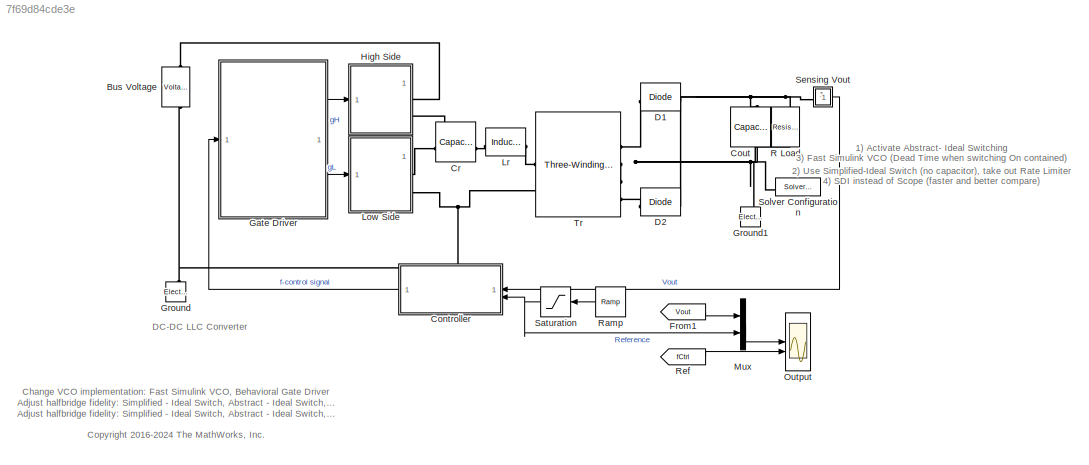
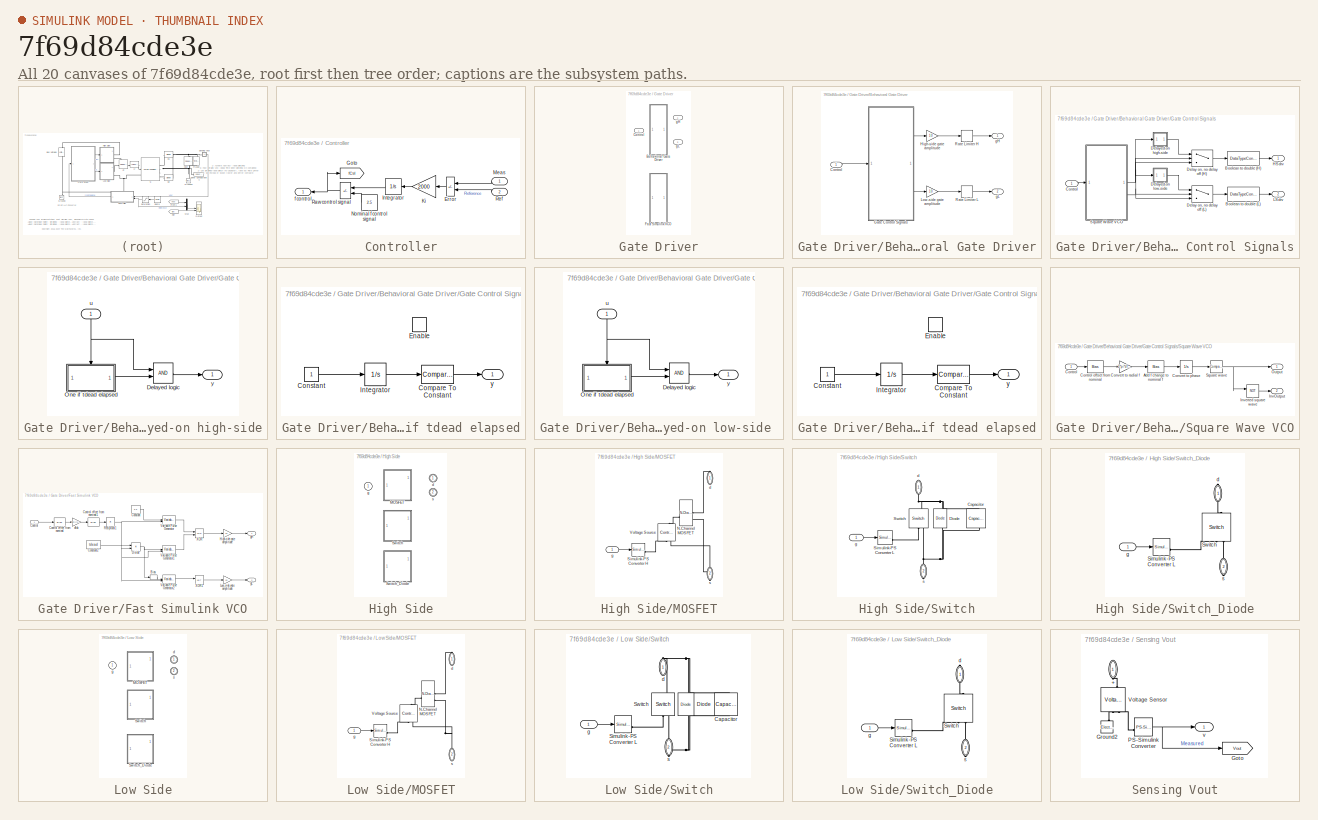
[diagram: thumbnail index - all 20 canvases of the model, root first then tree order]
MODEL slx_7f69d84cde3e
KIND model
CONFIG AbsTol = 1e-3
CONFIG EnableMultiTasking = on
CONFIG FixedStep = auto
CONFIG InitFcn = clear out;
CONFIG MaxStep = auto
CONFIG MinStep = auto
CONFIG PreLoadFcn = Vbus_nominal = 450;\nVbus_ripple = 10;\nbusRippleFrequency = 100;\nVout_nominal = 54;\nPout = 100;\nCr = 1.2089e-8;\nLr = 1.6226e-4;\nLm = 2.3e-3;\nn = 4.3269;\ntransformerCoupling = 0.99;\nCout = 3.0237e-5;\ntdead = 3e-7;\nfswfinal = [67.287 91.52]*1e3;\nVf = 0.6;\n\nswitchType = 1;\nMode = 0;
CONFIG RelTol = 1e-3
CONFIG SampleTimeConstraint = Unconstrained
CONFIG SolverName = daessc
CONFIG StartTime = 0.0
CONFIG StopFcn = %ee_addSimlogTimeStamp(bdroot)\ntry\n    out.SimulationMetadata.TimingInfo\ncatch\nend
CONFIG StopTime = 2e-3
BLOCK [Reference] Bus Voltage  REF=ee_lib/Sources/Voltage Source
  NameLocation = left
  SourceBlock = ee_lib/Sources/Voltage Source
  SourceType = Voltage Source
BLOCK [SubSystem] Controller
BLOCK [Sum] Controller/Error
  IconShape = rectangular
  Inputs = -+
BLOCK [Goto] Controller/Goto
  GotoTag = fCtrl
  TagVisibility = global
BLOCK [Integrator] Controller/Integrator
  LimitOutput = on
  LowerSaturationLimit = -7.5
  UpperSaturationLimit = 2.5
BLOCK [Gain] Controller/Ki
  Gain = 2000
BLOCK [Inport] Controller/Meas
  NameLocation = top
BLOCK [Constant] Controller/Nominal f control signal
  Value = 2.5
BLOCK [Sum] Controller/Raw control signal
  IconShape = rectangular
  Inputs = -+
BLOCK [Inport] Controller/Ref
  Port = 2
BLOCK [Outport] Controller/f control
  NameLocation = top
  VectorParamsAs1DForOutWhenUnconnected = off
BLOCK [Reference] Cout  REF=ee_lib/Passive/Capacitor
  NameLocation = left
  SourceBlock = ee_lib/Passive/Capacitor
  SourceType = Capacitor
BLOCK [Reference] Cr  REF=ee_lib/Passive/Capacitor
  SourceBlock = ee_lib/Passive/Capacitor
  SourceType = Capacitor
BLOCK [Reference] D1  REF=ee_lib/Semiconductors &
Converters/Diode
  SourceBlock = ee_lib/Semiconductors &\nConverters/Diode
  SourceType = Diode
BLOCK [Reference] D2  REF=ee_lib/Semiconductors &
Converters/Diode
  SourceBlock = ee_lib/Semiconductors &\nConverters/Diode
  SourceType = Diode
BLOCK [From] From1
  GotoTag = Vout
  TagVisibility = global
BLOCK [SubSystem] Gate Driver
  Variant = on
  VariantControl = Choice
BLOCK [SubSystem] Gate Driver/Behavioral Gate Driver
  VariantControl = Mode == 0
BLOCK [Inport] Gate Driver/Behavioral Gate Driver/Control
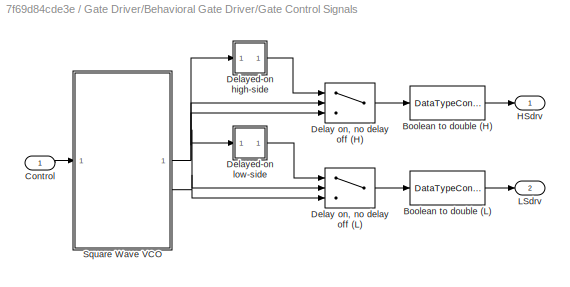
BLOCK [SubSystem] Gate Driver/Behavioral Gate Driver/Gate Control Signals
BLOCK [DataTypeConversion] Gate Driver/Behavioral Gate Driver/Gate Control Signals/Boolean to double (H)
  RndMeth = Floor
  SaturateOnIntegerOverflow = off
BLOCK [DataTypeConversion] Gate Driver/Behavioral Gate Driver/Gate Control Signals/Boolean to double (L)
  RndMeth = Floor
  SaturateOnIntegerOverflow = off
BLOCK [Inport] Gate Driver/Behavioral Gate Driver/Gate Control Signals/Control
BLOCK [Switch] Gate Driver/Behavioral Gate Driver/Gate Control Signals/Delay on, no delay off (H)
  Criteria = u2 > Threshold
  InputSameDT = off
  SaturateOnIntegerOverflow = off
  Threshold = 0.5
BLOCK [Switch] Gate Driver/Behavioral Gate Driver/Gate Control Signals/Delay on, no delay off (L)
  Criteria = u2 > Threshold
  InputSameDT = off
  SaturateOnIntegerOverflow = off
  Threshold = 0.5
BLOCK [SubSystem] Gate Driver/Behavioral Gate Driver/Gate Control Signals/Delayed-on high-side
BLOCK [Logic] Gate Driver/Behavioral Gate Driver/Gate Control Signals/Delayed-on high-side/Delayed logic
  AllPortsSameDT = off
  OutDataTypeStr = boolean
BLOCK [SubSystem] Gate Driver/Behavioral Gate Driver/Gate Control Signals/Delayed-on high-side/One if tdead elapsed
  TreatAsAtomicUnit = on
BLOCK [Reference] Gate Driver/Behavioral Gate Driver/Gate Control Signals/Delayed-on high-side/One if tdead elapsed/Compare To Constant  REF=simulink/Logic and Bit
Operations/Compare
To Constant
  SourceBlock = simulink/Logic and Bit\nOperations/Compare\nTo Constant
  SourceType = Compare To Constant
BLOCK [Constant] Gate Driver/Behavioral Gate Driver/Gate Control Signals/Delayed-on high-side/One if tdead elapsed/Constant
BLOCK [EnablePort] Gate Driver/Behavioral Gate Driver/Gate Control Signals/Delayed-on high-side/One if tdead elapsed/Enable
  StatesWhenEnabling = reset
BLOCK [Integrator] Gate Driver/Behavioral Gate Driver/Gate Control Signals/Delayed-on high-side/One if tdead elapsed/Integrator
BLOCK [Outport] Gate Driver/Behavioral Gate Driver/Gate Control Signals/Delayed-on high-side/One if tdead elapsed/y
  VectorParamsAs1DForOutWhenUnconnected = off
BLOCK [Inport] Gate Driver/Behavioral Gate Driver/Gate Control Signals/Delayed-on high-side/u
  NameLocation = right
BLOCK [Outport] Gate Driver/Behavioral Gate Driver/Gate Control Signals/Delayed-on high-side/y
  VectorParamsAs1DForOutWhenUnconnected = off
BLOCK [SubSystem] Gate Driver/Behavioral Gate Driver/Gate Control Signals/Delayed-on low-side 
BLOCK [Logic] Gate Driver/Behavioral Gate Driver/Gate Control Signals/Delayed-on low-side /Delayed logic
  AllPortsSameDT = off
  OutDataTypeStr = boolean
BLOCK [SubSystem] Gate Driver/Behavioral Gate Driver/Gate Control Signals/Delayed-on low-side /One if tdead elapsed
  TreatAsAtomicUnit = on
BLOCK [Reference] Gate Driver/Behavioral Gate Driver/Gate Control Signals/Delayed-on low-side /One if tdead elapsed/Compare To Constant  REF=simulink/Logic and Bit
Operations/Compare
To Constant
  SourceBlock = simulink/Logic and Bit\nOperations/Compare\nTo Constant
  SourceType = Compare To Constant
BLOCK [Constant] Gate Driver/Behavioral Gate Driver/Gate Control Signals/Delayed-on low-side /One if tdead elapsed/Constant
BLOCK [EnablePort] Gate Driver/Behavioral Gate Driver/Gate Control Signals/Delayed-on low-side /One if tdead elapsed/Enable
  StatesWhenEnabling = reset
BLOCK [Integrator] Gate Driver/Behavioral Gate Driver/Gate Control Signals/Delayed-on low-side /One if tdead elapsed/Integrator
BLOCK [Outport] Gate Driver/Behavioral Gate Driver/Gate Control Signals/Delayed-on low-side /One if tdead elapsed/y
  VectorParamsAs1DForOutWhenUnconnected = off
BLOCK [Inport] Gate Driver/Behavioral Gate Driver/Gate Control Signals/Delayed-on low-side /u
  NameLocation = right
BLOCK [Outport] Gate Driver/Behavioral Gate Driver/Gate Control Signals/Delayed-on low-side /y
  VectorParamsAs1DForOutWhenUnconnected = off
BLOCK [Outport] Gate Driver/Behavioral Gate Driver/Gate Control Signals/HSdrv
  VectorParamsAs1DForOutWhenUnconnected = off
BLOCK [Outport] Gate Driver/Behavioral Gate Driver/Gate Control Signals/LSdrv
  Port = 2
  VectorParamsAs1DForOutWhenUnconnected = off
BLOCK [SubSystem] Gate Driver/Behavioral Gate Driver/Gate Control Signals/Square Wave VCO
BLOCK [Bias] Gate Driver/Behavioral Gate Driver/Gate Control Signals/Square Wave VCO/Add f change to nominal f
  Bias = 2*pi*fnom
  SaturateOnIntegerOverflow = off
BLOCK [Inport] Gate Driver/Behavioral Gate Driver/Gate Control Signals/Square Wave VCO/Control
BLOCK [Bias] Gate Driver/Behavioral Gate Driver/Gate Control Signals/Square Wave VCO/Control offset from nominal
  Bias = -vnom
  SaturateOnIntegerOverflow = off
BLOCK [Integrator] Gate Driver/Behavioral Gate Driver/Gate Control Signals/Square Wave VCO/Convert to phase
  WrapState = on
  WrappedStateLowerValue = 0
  WrappedStateUpperValue = 2*pi
BLOCK [Gain] Gate Driver/Behavioral Gate Driver/Gate Control Signals/Square Wave VCO/Convert to radial f
  Gain = 2*pi*dfdv
BLOCK [Outport] Gate Driver/Behavioral Gate Driver/Gate Control Signals/Square Wave VCO/InvOutput
  Port = 2
  VectorParamsAs1DForOutWhenUnconnected = off
BLOCK [Logic] Gate Driver/Behavioral Gate Driver/Gate Control Signals/Square Wave VCO/Inverted square wave
  AllPortsSameDT = off
  Operator = NOT
  OutDataTypeStr = boolean
BLOCK [Outport] Gate Driver/Behavioral Gate Driver/Gate Control Signals/Square Wave VCO/Output
  VectorParamsAs1DForOutWhenUnconnected = off
BLOCK [Reference] Gate Driver/Behavioral Gate Driver/Gate Control Signals/Square Wave VCO/Square wave  REF=simulink/Logic and Bit
Operations/Compare
To Constant
  SourceBlock = simulink/Logic and Bit\nOperations/Compare\nTo Constant
  SourceType = Compare To Constant
BLOCK [Gain] Gate Driver/Behavioral Gate Driver/High-side gate amplitude
  Gain = 10
BLOCK [Gain] Gate Driver/Behavioral Gate Driver/Low-side gate amplitude
  Gain = 10
BLOCK [RateLimiter] Gate Driver/Behavioral Gate Driver/Rate Limiter H
  FallingSlewLimit = -10*5/tdead
  RisingSlewLimit = 10*5/tdead
BLOCK [RateLimiter] Gate Driver/Behavioral Gate Driver/Rate Limiter L
  FallingSlewLimit = -10*5/tdead
  RisingSlewLimit = 10*5/tdead
BLOCK [Outport] Gate Driver/Behavioral Gate Driver/gH
  VectorParamsAs1DForOutWhenUnconnected = off
BLOCK [Outport] Gate Driver/Behavioral Gate Driver/gL
  Port = 2
  VectorParamsAs1DForOutWhenUnconnected = off
BLOCK [Inport] Gate Driver/Control
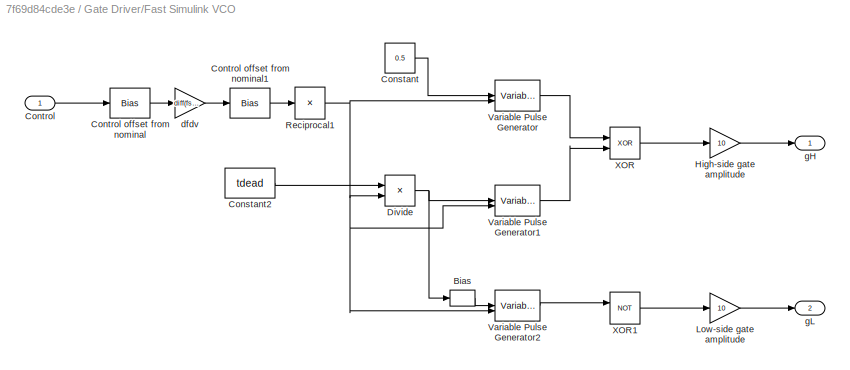
BLOCK [SubSystem] Gate Driver/Fast Simulink VCO
  VariantControl = Mode == 1
BLOCK [Bias] Gate Driver/Fast Simulink VCO/Bias
  Bias = 0.5
  SaturateOnIntegerOverflow = off
BLOCK [Constant] Gate Driver/Fast Simulink VCO/Constant
  Value = 0.5
BLOCK [Constant] Gate Driver/Fast Simulink VCO/Constant2
  Value = tdead
BLOCK [Inport] Gate Driver/Fast Simulink VCO/Control
BLOCK [Bias] Gate Driver/Fast Simulink VCO/Control offset from nominal
  Bias = -2.5
  SaturateOnIntegerOverflow = off
BLOCK [Bias] Gate Driver/Fast Simulink VCO/Control offset from nominal1
  Bias = mean(fswfinal)
  SaturateOnIntegerOverflow = off
BLOCK [Product] Gate Driver/Fast Simulink VCO/Divide
  Inputs = */
BLOCK [Gain] Gate Driver/Fast Simulink VCO/High-side gate amplitude
  Gain = 10
  OutDataTypeStr = double
BLOCK [Gain] Gate Driver/Fast Simulink VCO/Low-side gate amplitude
  Gain = 10
  OutDataTypeStr = double
BLOCK [Product] Gate Driver/Fast Simulink VCO/Reciprocal1
  Inputs = /
BLOCK [VariablePulseGenerator] Gate Driver/Fast Simulink VCO/Variable Pulse Generator
  SampleTime = 0.1
BLOCK [VariablePulseGenerator] Gate Driver/Fast Simulink VCO/Variable Pulse Generator1
  SampleTime = 0.1
BLOCK [VariablePulseGenerator] Gate Driver/Fast Simulink VCO/Variable Pulse Generator2
  SampleTime = 0.1
BLOCK [Logic] Gate Driver/Fast Simulink VCO/XOR
  AllPortsSameDT = off
  IconShape = distinctive
  Operator = XOR
  OutDataTypeStr = boolean
BLOCK [Logic] Gate Driver/Fast Simulink VCO/XOR1
  AllPortsSameDT = off
  IconShape = distinctive
  Operator = NOT
  OutDataTypeStr = boolean
BLOCK [Gain] Gate Driver/Fast Simulink VCO/dfdv
  Gain = diff(fswfinal)/2
BLOCK [Outport] Gate Driver/Fast Simulink VCO/gH
BLOCK [Outport] Gate Driver/Fast Simulink VCO/gL
  Port = 2
BLOCK [Outport] Gate Driver/gH
BLOCK [Outport] Gate Driver/gL
  Port = 2
BLOCK [Reference] Ground  REF=fl_lib/Electrical/Electrical Elements/Electrical Reference
  NameLocation = right
  SourceBlock = fl_lib/Electrical/Electrical Elements/Electrical Reference
  SourceType = Electrical Reference
BLOCK [Reference] Ground1  REF=fl_lib/Electrical/Electrical Elements/Electrical Reference
  NameLocation = right
  SourceBlock = fl_lib/Electrical/Electrical Elements/Electrical Reference
  SourceType = Electrical Reference
BLOCK [SubSystem] High Side
  NameLocation = top
  Variant = on
BLOCK [SubSystem] High Side/MOSFET
  Tag = PublishSubsystem
  VariantControl = switchType ==1
BLOCK [Reference] High Side/MOSFET/N-Channel MOSFET  REF=ee_lib/Semiconductors &
Converters/N-Channel MOSFET
  NameLocation = top
  SourceBlock = ee_lib/Semiconductors &\nConverters/N-Channel MOSFET
  SourceType = N-Channel MOSFET
BLOCK [Reference] High Side/MOSFET/Simulink-PS Converter H  REF=nesl_utility/Simulink-PS
Converter
  SourceBlock = nesl_utility/Simulink-PS\nConverter
  SourceType = Simulink-PS\nConverter
BLOCK [Reference] High Side/MOSFET/Voltage Source  REF=fl_lib/Electrical/Electrical Sources/Controlled Voltage
Source
  NameLocation = left
  SourceBlock = fl_lib/Electrical/Electrical Sources/Controlled Voltage\nSource
  SourceType = Controlled Voltage\nSource
BLOCK [PMIOPort] High Side/MOSFET/d
  NameLocation = right
  Side = Right
BLOCK [Inport] High Side/MOSFET/g
BLOCK [PMIOPort] High Side/MOSFET/s
  NameLocation = left
  Port = 2
  Side = Right
BLOCK [SubSystem] High Side/Switch
  Tag = PublishSubsystem
  VariantControl = switchType ==2
BLOCK [Reference] High Side/Switch/Capacitor  REF=ee_lib/Passive/Capacitor
  NameLocation = right
  SourceBlock = ee_lib/Passive/Capacitor
  SourceType = Capacitor
BLOCK [Reference] High Side/Switch/Diode  REF=fl_lib/Electrical/Electrical Elements/Diode
  NameLocation = right
  SourceBlock = fl_lib/Electrical/Electrical Elements/Diode
  SourceType = Diode
BLOCK [Reference] High Side/Switch/Simulink-PS Converter L  REF=nesl_utility/Simulink-PS
Converter
  SourceBlock = nesl_utility/Simulink-PS\nConverter
  SourceType = Simulink-PS\nConverter
BLOCK [Reference] High Side/Switch/Switch  REF=fl_lib/Electrical/Electrical Elements/Switch
  NameLocation = left
  SourceBlock = fl_lib/Electrical/Electrical Elements/Switch
  SourceType = Switch
BLOCK [PMIOPort] High Side/Switch/d
  NameLocation = left
  Side = Right
BLOCK [Inport] High Side/Switch/g
BLOCK [PMIOPort] High Side/Switch/s
  NameLocation = left
  Port = 2
  Side = Right
BLOCK [SubSystem] High Side/Switch_Diode
  VariantControl = switchType ==3
BLOCK [Reference] High Side/Switch_Diode/Simulink-PS Converter L  REF=nesl_utility/Simulink-PS
Converter
  SourceBlock = nesl_utility/Simulink-PS\nConverter
  SourceType = Simulink-PS\nConverter
BLOCK [Reference] High Side/Switch_Diode/Switch  REF=Simscape_lib/Switch
  NameLocation = right
  SourceBlock = Simscape_lib/Switch
  SourceType = Switch
BLOCK [PMIOPort] High Side/Switch_Diode/d
  NameLocation = left
  Side = Right
BLOCK [Inport] High Side/Switch_Diode/g
BLOCK [PMIOPort] High Side/Switch_Diode/s
  NameLocation = left
  Port = 2
  Side = Right
BLOCK [PMIOPort] High Side/d
  NameLocation = top
  Side = Right
BLOCK [Inport] High Side/g
BLOCK [PMIOPort] High Side/s
  Port = 2
  Side = Right
BLOCK [SubSystem] Low Side
  Variant = on
BLOCK [SubSystem] Low Side/MOSFET
  VariantControl = switchType ==1
BLOCK [Reference] Low Side/MOSFET/N-Channel MOSFET  REF=ee_lib/Semiconductors &
Converters/N-Channel MOSFET
  NameLocation = top
  SourceBlock = ee_lib/Semiconductors &\nConverters/N-Channel MOSFET
  SourceType = N-Channel MOSFET
BLOCK [Reference] Low Side/MOSFET/Simulink-PS Converter H  REF=nesl_utility/Simulink-PS
Converter
  SourceBlock = nesl_utility/Simulink-PS\nConverter
  SourceType = Simulink-PS\nConverter
BLOCK [Reference] Low Side/MOSFET/Voltage Source  REF=fl_lib/Electrical/Electrical Sources/Controlled Voltage
Source
  NameLocation = left
  SourceBlock = fl_lib/Electrical/Electrical Sources/Controlled Voltage\nSource
  SourceType = Controlled Voltage\nSource
BLOCK [PMIOPort] Low Side/MOSFET/d
  NameLocation = right
  Side = Right
BLOCK [Inport] Low Side/MOSFET/g
BLOCK [PMIOPort] Low Side/MOSFET/s
  NameLocation = left
  Port = 2
  Side = Right
BLOCK [SubSystem] Low Side/Switch
  VariantControl = switchType ==2
BLOCK [Reference] Low Side/Switch/Capacitor  REF=ee_lib/Passive/Capacitor
  NameLocation = right
  SourceBlock = ee_lib/Passive/Capacitor
  SourceType = Capacitor
BLOCK [Reference] Low Side/Switch/Diode  REF=fl_lib/Electrical/Electrical Elements/Diode
  NameLocation = right
  SourceBlock = fl_lib/Electrical/Electrical Elements/Diode
  SourceType = Diode
BLOCK [Reference] Low Side/Switch/Simulink-PS Converter L  REF=nesl_utility/Simulink-PS
Converter
  SourceBlock = nesl_utility/Simulink-PS\nConverter
  SourceType = Simulink-PS\nConverter
BLOCK [Reference] Low Side/Switch/Switch  REF=fl_lib/Electrical/Electrical Elements/Switch
  NameLocation = left
  SourceBlock = fl_lib/Electrical/Electrical Elements/Switch
  SourceType = Switch
BLOCK [PMIOPort] Low Side/Switch/d
  NameLocation = left
  Side = Right
BLOCK [Inport] Low Side/Switch/g
BLOCK [PMIOPort] Low Side/Switch/s
  NameLocation = left
  Port = 2
  Side = Right
BLOCK [SubSystem] Low Side/Switch_Diode
  VariantControl = switchType ==3
BLOCK [Reference] Low Side/Switch_Diode/Simulink-PS Converter L  REF=nesl_utility/Simulink-PS
Converter
  SourceBlock = nesl_utility/Simulink-PS\nConverter
  SourceType = Simulink-PS\nConverter
BLOCK [Reference] Low Side/Switch_Diode/Switch  REF=Simscape_lib/Switch
  NameLocation = right
  SourceBlock = Simscape_lib/Switch
  SourceType = Switch
BLOCK [PMIOPort] Low Side/Switch_Diode/d
  NameLocation = left
  Side = Right
BLOCK [Inport] Low Side/Switch_Diode/g
BLOCK [PMIOPort] Low Side/Switch_Diode/s
  NameLocation = left
  Port = 2
  Side = Right
BLOCK [PMIOPort] Low Side/d
  NameLocation = top
  Side = Right
BLOCK [Inport] Low Side/g
BLOCK [PMIOPort] Low Side/s
  Port = 2
  Side = Right
BLOCK [Reference] Lr  REF=ee_lib/Passive/Inductor
  SourceBlock = ee_lib/Passive/Inductor
  SourceType = Inductor
BLOCK [Mux] Mux
  DisplayOption = bar
  Inputs = 2
BLOCK [Scope] Output
  Floating = off
  NumInputPorts = 2
  ScopeSpecificationString = Simulink.scopes.TimeScopeBlockCfg('CurrentConfiguration', extmgr.ConfigurationSet(extmgr.Configuration('Core','General UI',true),extmgr.Configuration('Core','Source UI',true),extmgr.Configuration('Sources','WiredSimulink',true),extmgr.Configuration('Visuals','Time Domain',true,'SerializedDisplays',{struct('MinYLimReal','-6.76102','MaxYLimReal','60.84917','YLabelReal','','MinYLimMag','0.00000','Max...<+1942ch>
BLOCK [Reference] R Load  REF=ee_lib/Passive/Resistor
  NameLocation = right
  SourceBlock = ee_lib/Passive/Resistor
  SourceType = Resistor
BLOCK [Reference] Ramp  REF=simulink/Sources/Ramp
  SourceBlock = simulink/Sources/Ramp
  SourceType = Ramp
BLOCK [From] Ref
  GotoTag = fCtrl
  TagVisibility = global
BLOCK [Saturate] Saturation
  LowerLimit = 0
  UpperLimit = Vout_nominal
BLOCK [SubSystem] Sensing Vout
  NameLocation = top
BLOCK [PMIOPort] Sensing Vout/+
  NameLocation = right
  Side = Left
BLOCK [Goto] Sensing Vout/Goto
  GotoTag = Vout
  TagVisibility = global
BLOCK [Reference] Sensing Vout/Ground2  REF=fl_lib/Electrical/Electrical Elements/Electrical Reference
  NameLocation = right
  SourceBlock = fl_lib/Electrical/Electrical Elements/Electrical Reference
  SourceType = Electrical Reference
BLOCK [Reference] Sensing Vout/PS-Simulink Converter  REF=nesl_utility/PS-Simulink
Converter
  SourceBlock = nesl_utility/PS-Simulink\nConverter
  SourceType = PS-Simulink\nConverter
BLOCK [Reference] Sensing Vout/Voltage Sensor  REF=fl_lib/Electrical/Electrical Sensors/Voltage Sensor
  NameLocation = right
  SourceBlock = fl_lib/Electrical/Electrical Sensors/Voltage Sensor
  SourceType = Voltage Sensor
BLOCK [Outport] Sensing Vout/v
  NameLocation = top
  VectorParamsAs1DForOutWhenUnconnected = off
BLOCK [Reference] Solver Configuration  REF=nesl_utility/Solver
Configuration
  SourceBlock = nesl_utility/Solver\nConfiguration
  SourceType = Solver\nConfiguration
BLOCK [Reference] Tr  REF=ee_lib/Passive/Transformers/Three-Winding Mutual
Inductor
  SourceBlock = ee_lib/Passive/Transformers/Three-Winding Mutual\nInductor
  SourceType = Three-Winding Mutual\nInductor
ANNOTATION (root): 1) Activate Abstract- Ideal Switching 2) Use Simplified-Ideal Switch (no capacitor), take out Rate Limiter 3) Fast Simulink VCO (Dead Time when switching On contained) 4) SDI instead of Scope (faster and better compare)
ANNOTATION (root): Adjust halfbridge fidelity: Simplified - Ideal Switch , Abstract - Ideal Switch , Detailed - MOSFET ( see code )
ANNOTATION (root): Change VCO implementation: Fast Simulink VCO , Behavioral Gate Driver
ANNOTATION (root): <copyright redacted>
ANNOTATION (root): DC-DC LLC Converter
LINE Controller/Error:1 -> Controller/Ki:1
LINE Controller/Integrator:1 -> Controller/Raw control signal:1
LINE Controller/Ki:1 -> Controller/Integrator:1
LINE Controller/Meas:1 -> Controller/Error:1
LINE Controller/Nominal f control signal:1 -> Controller/Raw control signal:2
NET Controller/Raw control signal:1 -> Controller/Goto:1, Controller/f control:1
LINE Controller/Ref:1 -> Controller/Error:2
LINE Controller:1 -> Gate Driver:1
LINE From1:1 -> Mux:1
LINE Gate Driver/Behavioral Gate Driver/Control:1 -> Gate Driver/Behavioral Gate Driver/Gate Control Signals:1
LINE Gate Driver/Behavioral Gate Driver/Gate Control Signals/Boolean to double (H):1 -> Gate Driver/Behavioral Gate Driver/Gate Control Signals/HSdrv:1
LINE Gate Driver/Behavioral Gate Driver/Gate Control Signals/Boolean to double (L):1 -> Gate Driver/Behavioral Gate Driver/Gate Control Signals/LSdrv:1
LINE Gate Driver/Behavioral Gate Driver/Gate Control Signals/Control:1 -> Gate Driver/Behavioral Gate Driver/Gate Control Signals/Square Wave VCO:1
LINE Gate Driver/Behavioral Gate Driver/Gate Control Signals/Delay on, no delay off (H):1 -> Gate Driver/Behavioral Gate Driver/Gate Control Signals/Boolean to double (H):1
LINE Gate Driver/Behavioral Gate Driver/Gate Control Signals/Delay on, no delay off (L):1 -> Gate Driver/Behavioral Gate Driver/Gate Control Signals/Boolean to double (L):1
LINE Gate Driver/Behavioral Gate Driver/Gate Control Signals/Delayed-on high-side/Delayed logic:1 -> Gate Driver/Behavioral Gate Driver/Gate Control Signals/Delayed-on high-side/y:1
LINE Gate Driver/Behavioral Gate Driver/Gate Control Signals/Delayed-on high-side/One if tdead elapsed/Compare To Constant:1 -> Gate Driver/Behavioral Gate Driver/Gate Control Signals/Delayed-on high-side/One if tdead elapsed/y:1
LINE Gate Driver/Behavioral Gate Driver/Gate Control Signals/Delayed-on high-side/One if tdead elapsed/Constant:1 -> Gate Driver/Behavioral Gate Driver/Gate Control Signals/Delayed-on high-side/One if tdead elapsed/Integrator:1
LINE Gate Driver/Behavioral Gate Driver/Gate Control Signals/Delayed-on high-side/One if tdead elapsed/Integrator:1 -> Gate Driver/Behavioral Gate Driver/Gate Control Signals/Delayed-on high-side/One if tdead elapsed/Compare To Constant:1
LINE Gate Driver/Behavioral Gate Driver/Gate Control Signals/Delayed-on high-side/One if tdead elapsed:1 -> Gate Driver/Behavioral Gate Driver/Gate Control Signals/Delayed-on high-side/Delayed logic:2
NET Gate Driver/Behavioral Gate Driver/Gate Control Signals/Delayed-on high-side/u:1 -> Gate Driver/Behavioral Gate Driver/Gate Control Signals/Delayed-on high-side/Delayed logic:1, Gate Driver/Behavioral Gate Driver/Gate Control Signals/Delayed-on high-side/One if tdead elapsed:enable
LINE Gate Driver/Behavioral Gate Driver/Gate Control Signals/Delayed-on high-side:1 -> Gate Driver/Behavioral Gate Driver/Gate Control Signals/Delay on, no delay off (H):1
LINE Gate Driver/Behavioral Gate Driver/Gate Control Signals/Delayed-on low-side /Delayed logic:1 -> Gate Driver/Behavioral Gate Driver/Gate Control Signals/Delayed-on low-side /y:1
LINE Gate Driver/Behavioral Gate Driver/Gate Control Signals/Delayed-on low-side /One if tdead elapsed/Compare To Constant:1 -> Gate Driver/Behavioral Gate Driver/Gate Control Signals/Delayed-on low-side /One if tdead elapsed/y:1
LINE Gate Driver/Behavioral Gate Driver/Gate Control Signals/Delayed-on low-side /One if tdead elapsed/Constant:1 -> Gate Driver/Behavioral Gate Driver/Gate Control Signals/Delayed-on low-side /One if tdead elapsed/Integrator:1
LINE Gate Driver/Behavioral Gate Driver/Gate Control Signals/Delayed-on low-side /One if tdead elapsed/Integrator:1 -> Gate Driver/Behavioral Gate Driver/Gate Control Signals/Delayed-on low-side /One if tdead elapsed/Compare To Constant:1
LINE Gate Driver/Behavioral Gate Driver/Gate Control Signals/Delayed-on low-side /One if tdead elapsed:1 -> Gate Driver/Behavioral Gate Driver/Gate Control Signals/Delayed-on low-side /Delayed logic:2
NET Gate Driver/Behavioral Gate Driver/Gate Control Signals/Delayed-on low-side /u:1 -> Gate Driver/Behavioral Gate Driver/Gate Control Signals/Delayed-on low-side /Delayed logic:1, Gate Driver/Behavioral Gate Driver/Gate Control Signals/Delayed-on low-side /One if tdead elapsed:enable
LINE Gate Driver/Behavioral Gate Driver/Gate Control Signals/Delayed-on low-side :1 -> Gate Driver/Behavioral Gate Driver/Gate Control Signals/Delay on, no delay off (L):1
LINE Gate Driver/Behavioral Gate Driver/Gate Control Signals/Square Wave VCO/Add f change to nominal f:1 -> Gate Driver/Behavioral Gate Driver/Gate Control Signals/Square Wave VCO/Convert to phase:1
LINE Gate Driver/Behavioral Gate Driver/Gate Control Signals/Square Wave VCO/Control offset from nominal:1 -> Gate Driver/Behavioral Gate Driver/Gate Control Signals/Square Wave VCO/Convert to radial f:1
LINE Gate Driver/Behavioral Gate Driver/Gate Control Signals/Square Wave VCO/Control:1 -> Gate Driver/Behavioral Gate Driver/Gate Control Signals/Square Wave VCO/Control offset from nominal:1
LINE Gate Driver/Behavioral Gate Driver/Gate Control Signals/Square Wave VCO/Convert to phase:1 -> Gate Driver/Behavioral Gate Driver/Gate Control Signals/Square Wave VCO/Square wave:1
LINE Gate Driver/Behavioral Gate Driver/Gate Control Signals/Square Wave VCO/Convert to radial f:1 -> Gate Driver/Behavioral Gate Driver/Gate Control Signals/Square Wave VCO/Add f change to nominal f:1
LINE Gate Driver/Behavioral Gate Driver/Gate Control Signals/Square Wave VCO/Inverted square wave:1 -> Gate Driver/Behavioral Gate Driver/Gate Control Signals/Square Wave VCO/InvOutput:1
NET Gate Driver/Behavioral Gate Driver/Gate Control Signals/Square Wave VCO/Square wave:1 -> Gate Driver/Behavioral Gate Driver/Gate Control Signals/Square Wave VCO/Inverted square wave:1, Gate Driver/Behavioral Gate Driver/Gate Control Signals/Square Wave VCO/Output:1
NET Gate Driver/Behavioral Gate Driver/Gate Control Signals/Square Wave VCO:1 -> Gate Driver/Behavioral Gate Driver/Gate Control Signals/Delay on, no delay off (H):2, Gate Driver/Behavioral Gate Driver/Gate Control Signals/Delay on, no delay off (H):3, Gate Driver/Behavioral Gate Driver/Gate Control Signals/Delayed-on high-side:1
NET Gate Driver/Behavioral Gate Driver/Gate Control Signals/Square Wave VCO:2 -> Gate Driver/Behavioral Gate Driver/Gate Control Signals/Delay on, no delay off (L):2, Gate Driver/Behavioral Gate Driver/Gate Control Signals/Delay on, no delay off (L):3, Gate Driver/Behavioral Gate Driver/Gate Control Signals/Delayed-on low-side :1
LINE Gate Driver/Behavioral Gate Driver/Gate Control Signals:1 -> Gate Driver/Behavioral Gate Driver/High-side gate amplitude:1
LINE Gate Driver/Behavioral Gate Driver/Gate Control Signals:2 -> Gate Driver/Behavioral Gate Driver/Low-side gate amplitude:1
LINE Gate Driver/Behavioral Gate Driver/High-side gate amplitude:1 -> Gate Driver/Behavioral Gate Driver/Rate Limiter H:1
LINE Gate Driver/Behavioral Gate Driver/Low-side gate amplitude:1 -> Gate Driver/Behavioral Gate Driver/Rate Limiter L:1
LINE Gate Driver/Behavioral Gate Driver/Rate Limiter H:1 -> Gate Driver/Behavioral Gate Driver/gH:1
LINE Gate Driver/Behavioral Gate Driver/Rate Limiter L:1 -> Gate Driver/Behavioral Gate Driver/gL:1
LINE Gate Driver/Fast Simulink VCO/Bias:1 -> Gate Driver/Fast Simulink VCO/Variable Pulse Generator2:1
LINE Gate Driver/Fast Simulink VCO/Constant2:1 -> Gate Driver/Fast Simulink VCO/Divide:1
LINE Gate Driver/Fast Simulink VCO/Constant:1 -> Gate Driver/Fast Simulink VCO/Variable Pulse Generator:1
LINE Gate Driver/Fast Simulink VCO/Control offset from nominal1:1 -> Gate Driver/Fast Simulink VCO/Reciprocal1:1
LINE Gate Driver/Fast Simulink VCO/Control offset from nominal:1 -> Gate Driver/Fast Simulink VCO/dfdv:1
LINE Gate Driver/Fast Simulink VCO/Control:1 -> Gate Driver/Fast Simulink VCO/Control offset from nominal:1
NET Gate Driver/Fast Simulink VCO/Divide:1 -> Gate Driver/Fast Simulink VCO/Bias:1, Gate Driver/Fast Simulink VCO/Variable Pulse Generator1:1
LINE Gate Driver/Fast Simulink VCO/High-side gate amplitude:1 -> Gate Driver/Fast Simulink VCO/gH:1
LINE Gate Driver/Fast Simulink VCO/Low-side gate amplitude:1 -> Gate Driver/Fast Simulink VCO/gL:1
NET Gate Driver/Fast Simulink VCO/Reciprocal1:1 -> Gate Driver/Fast Simulink VCO/Divide:2, Gate Driver/Fast Simulink VCO/Variable Pulse Generator1:2, Gate Driver/Fast Simulink VCO/Variable Pulse Generator2:2, Gate Driver/Fast Simulink VCO/Variable Pulse Generator:2
LINE Gate Driver/Fast Simulink VCO/Variable Pulse Generator1:1 -> Gate Driver/Fast Simulink VCO/XOR:2
LINE Gate Driver/Fast Simulink VCO/Variable Pulse Generator2:1 -> Gate Driver/Fast Simulink VCO/XOR1:1
LINE Gate Driver/Fast Simulink VCO/Variable Pulse Generator:1 -> Gate Driver/Fast Simulink VCO/XOR:1
LINE Gate Driver/Fast Simulink VCO/XOR1:1 -> Gate Driver/Fast Simulink VCO/Low-side gate amplitude:1
LINE Gate Driver/Fast Simulink VCO/XOR:1 -> Gate Driver/Fast Simulink VCO/High-side gate amplitude:1
LINE Gate Driver/Fast Simulink VCO/dfdv:1 -> Gate Driver/Fast Simulink VCO/Control offset from nominal1:1
LINE Gate Driver:1 -> High Side:1
LINE Gate Driver:2 -> Low Side:1
LINE High Side/MOSFET/g:1 -> High Side/MOSFET/Simulink-PS Converter H:1
LINE High Side/Switch/g:1 -> High Side/Switch/Simulink-PS Converter L:1
LINE High Side/Switch_Diode/g:1 -> High Side/Switch_Diode/Simulink-PS Converter L:1
LINE Low Side/MOSFET/g:1 -> Low Side/MOSFET/Simulink-PS Converter H:1
LINE Low Side/Switch/g:1 -> Low Side/Switch/Simulink-PS Converter L:1
LINE Low Side/Switch_Diode/g:1 -> Low Side/Switch_Diode/Simulink-PS Converter L:1
LINE Mux:1 -> Output:1
LINE Ramp:1 -> Saturation:1
LINE Ref:1 -> Output:2
NET Saturation:1 -> Controller:2, Mux:2
NET Sensing Vout/PS-Simulink Converter:1 -> Sensing Vout/Goto:1, Sensing Vout/v:1
LINE Sensing Vout:1 -> Controller:1
PLINE Bus Voltage:LConn1 -- High Side:RConn1
PNET net1: Bus Voltage:RConn1 -- Ground:LConn1 -- Low Side:RConn2 -- Tr:LConn2
PNET net2: Cout:LConn1 -- D1:RConn1 -- D2:RConn1 -- R Load:LConn1 -- Sensing Vout:LConn1
PNET net3: Cout:RConn1 -- Ground1:LConn1 -- R Load:RConn1 -- Solver Configuration:RConn1 -- Tr:RConn2 -- Tr:RConn3
PNET net4: Cr:LConn1 -- High Side:RConn2 -- Low Side:RConn1
PLINE Cr:RConn1 -- Lr:LConn1
PLINE D1:LConn1 -- Tr:RConn1
PLINE D2:LConn1 -- Tr:RConn4
PLINE High Side/MOSFET/N-Channel MOSFET:LConn1 -- High Side/MOSFET/Voltage Source:LConn1
PLINE High Side/MOSFET/N-Channel MOSFET:RConn1 -- High Side/MOSFET/d:RConn1
PNET net5: High Side/MOSFET/N-Channel MOSFET:RConn2 -- High Side/MOSFET/Voltage Source:RConn2 -- High Side/MOSFET/s:RConn1
PLINE High Side/MOSFET/Simulink-PS Converter H:RConn1 -- High Side/MOSFET/Voltage Source:RConn1
PNET net6: High Side/Switch/Capacitor:LConn1 -- High Side/Switch/Diode:RConn1 -- High Side/Switch/Switch:LConn1 -- High Side/Switch/d:RConn1
PNET net7: High Side/Switch/Capacitor:RConn1 -- High Side/Switch/Diode:LConn1 -- High Side/Switch/Switch:RConn2 -- High Side/Switch/s:RConn1
PLINE High Side/Switch/Simulink-PS Converter L:RConn1 -- High Side/Switch/Switch:RConn1
PLINE High Side/Switch_Diode/Simulink-PS Converter L:RConn1 -- High Side/Switch_Diode/Switch:RConn1
PLINE High Side/Switch_Diode/Switch:LConn1 -- High Side/Switch_Diode/d:RConn1
PLINE High Side/Switch_Diode/Switch:RConn2 -- High Side/Switch_Diode/s:RConn1
PLINE Low Side/MOSFET/N-Channel MOSFET:LConn1 -- Low Side/MOSFET/Voltage Source:LConn1
PLINE Low Side/MOSFET/N-Channel MOSFET:RConn1 -- Low Side/MOSFET/d:RConn1
PNET net8: Low Side/MOSFET/N-Channel MOSFET:RConn2 -- Low Side/MOSFET/Voltage Source:RConn2 -- Low Side/MOSFET/s:RConn1
PLINE Low Side/MOSFET/Simulink-PS Converter H:RConn1 -- Low Side/MOSFET/Voltage Source:RConn1
PNET net9: Low Side/Switch/Capacitor:LConn1 -- Low Side/Switch/Diode:RConn1 -- Low Side/Switch/Switch:LConn1 -- Low Side/Switch/d:RConn1
PNET net10: Low Side/Switch/Capacitor:RConn1 -- Low Side/Switch/Diode:LConn1 -- Low Side/Switch/Switch:RConn2 -- Low Side/Switch/s:RConn1
PLINE Low Side/Switch/Simulink-PS Converter L:RConn1 -- Low Side/Switch/Switch:RConn1
PLINE Low Side/Switch_Diode/Simulink-PS Converter L:RConn1 -- Low Side/Switch_Diode/Switch:RConn1
PLINE Low Side/Switch_Diode/Switch:LConn1 -- Low Side/Switch_Diode/d:RConn1
PLINE Low Side/Switch_Diode/Switch:RConn2 -- Low Side/Switch_Diode/s:RConn1
PLINE Lr:RConn1 -- Tr:LConn1
PLINE Sensing Vout/+:RConn1 -- Sensing Vout/Voltage Sensor:LConn1
PLINE Sensing Vout/Ground2:LConn1 -- Sensing Vout/Voltage Sensor:RConn2
PLINE Sensing Vout/PS-Simulink Converter:LConn1 -- Sensing Vout/Voltage Sensor:RConn1
note: NET lines group one-source signal fan-out (src -> all destinations, sorted); 1:1 wires keep LINE; PNET lines group multi-terminal physical nets as a canonical sorted terminal list (undirected conserving connections); 2-terminal nets keep the pairwise PLINE form
